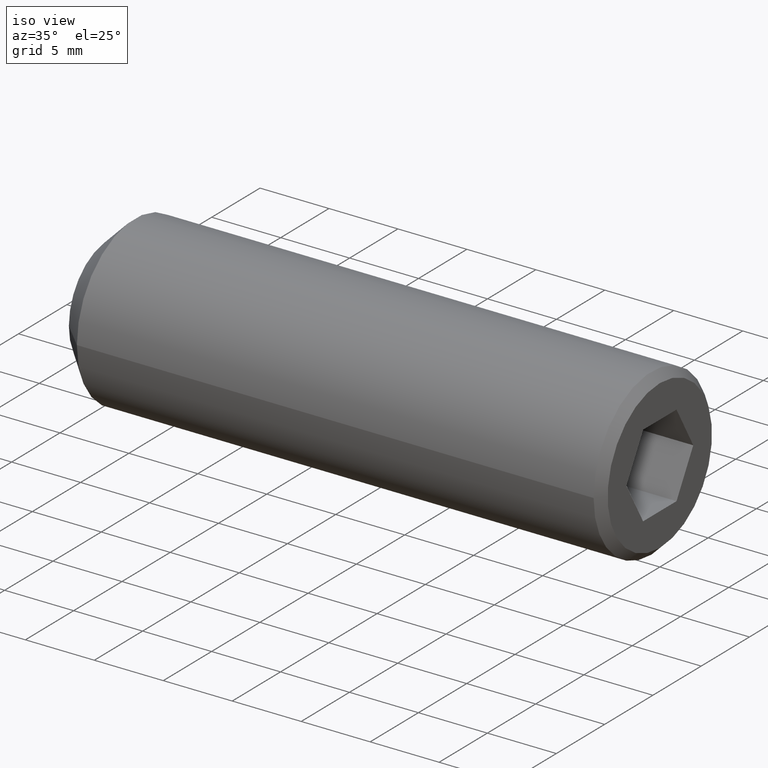
[diagram: clean part render]
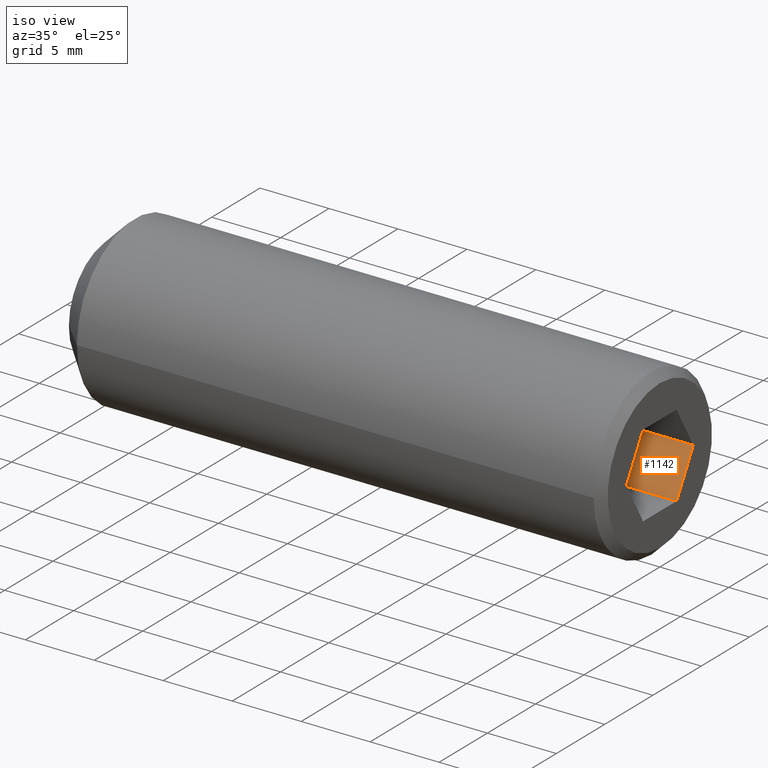
[diagram: same view with one face highlighted and labeled with its STEP entity id]
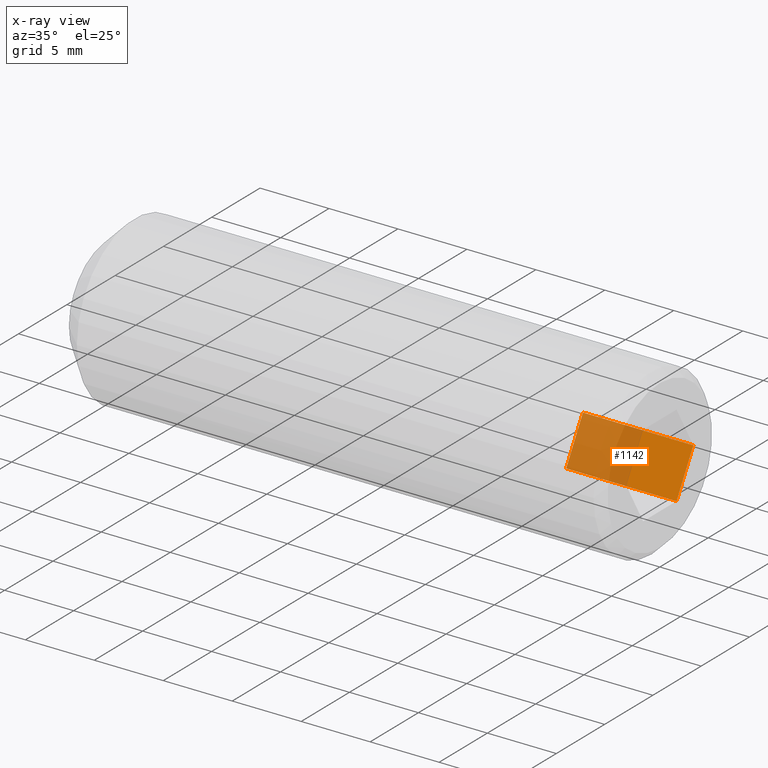
[diagram: x-ray of the same camera — body ghosted, the highlighted face saturated]
A machine part, iso view. The second image highlights one B-rep face of the part: STEP entity #1142.
The next image is the same camera in x-ray: the body ghosted, the highlighted face saturated — about 54% of this face is hidden behind the body in this view.
In plain terms, the highlighted planar face has unit normal (0, 0.866, -0.5).
Its self-contained STEP definition (entity closure, byte-faithful):
#186 = CARTESIAN_POINT ( 'NONE',  ( 32.00000000000000000, 3.464101615137748200, -4.738552910418652900E-016 ) ) ;
#294 = LINE ( 'NONE', #13440, #14233 ) ;
#440 = VERTEX_POINT ( 'NONE', #11723 ) ;
#929 = CARTESIAN_POINT ( 'NONE',  ( 40.00000000000000000, 3.464101615137748200, 1.598725048708560900E-017 ) ) ;
#1060 = VERTEX_POINT ( 'NONE', #4946 ) ;
#1142 = ADVANCED_FACE ( 'NONE', ( #2749 ), #6516, .F. ) ;
#1536 = DIRECTION ( 'NONE',  ( 1.000000000000000000, -0.0000000000000000000, 6.123031769111886300E-017 ) ) ;
#2001 = VECTOR ( 'NONE', #12206, 1000.000000000000200 ) ;
#2410 = VECTOR ( 'NONE', #1536, 1000.000000000000000 ) ;
#2703 = DIRECTION ( 'NONE',  ( 1.000000000000000000, -0.0000000000000000000, 6.123031769111886300E-017 ) ) ;
#2749 = FACE_OUTER_BOUND ( 'NONE', #6156, .T. ) ;
#2846 = LINE ( 'NONE', #6861, #2001 ) ;
#4946 = CARTESIAN_POINT ( 'NONE',  ( 32.00000000000000000, 2.598076211353318700, -1.499999999999998400 ) ) ;
#5235 = CARTESIAN_POINT ( 'NONE',  ( 32.00000000000000000, 1.732050807568871000, -3.000000000000000400 ) ) ;
#5291 = ORIENTED_EDGE ( 'NONE', *, *, #14147, .F. ) ;
#6156 = EDGE_LOOP ( 'NONE', ( #16222, #8261, #7005, #5291, #10355 ) ) ;
#6516 = PLANE ( 'NONE',  #8500 ) ;
#6861 = CARTESIAN_POINT ( 'NONE',  ( 32.00000000000000000, 1.732050807568871000, -3.000000000000000400 ) ) ;
#6914 = CARTESIAN_POINT ( 'NONE',  ( 40.00000000000000000, 1.732050807568871000, -3.000000000000000000 ) ) ;
#7005 = ORIENTED_EDGE ( 'NONE', *, *, #7938, .F. ) ;
#7938 = EDGE_CURVE ( 'NONE', #1060, #15743, #2846, .T. ) ;
#8131 = VERTEX_POINT ( 'NONE', #8852 ) ;
#8168 = DIRECTION ( 'NONE',  ( 0.0000000000000000000, 0.4999999999999998900, 0.8660254037844386000 ) ) ;
#8261 = ORIENTED_EDGE ( 'NONE', *, *, #16262, .F. ) ;
#8269 = VECTOR ( 'NONE', #8168, 1000.000000000000200 ) ;
#8419 = VECTOR ( 'NONE', #12791, 1000.000000000000200 ) ;
#8500 = AXIS2_PLACEMENT_3D ( 'NONE', #5235, #13392, #9430 ) ;
#8852 = CARTESIAN_POINT ( 'NONE',  ( 40.00000000000000000, 1.732050807568871000, -3.000000000000000000 ) ) ;
#9160 = LINE ( 'NONE', #186, #2410 ) ;
#9430 = DIRECTION ( 'NONE',  ( 0.0000000000000000000, 0.4999999999999999400, 0.8660254037844387100 ) ) ;
#10355 = ORIENTED_EDGE ( 'NONE', *, *, #11081, .T. ) ;
#11081 = EDGE_CURVE ( 'NONE', #440, #8131, #294, .T. ) ;
#11723 = CARTESIAN_POINT ( 'NONE',  ( 32.00000000000000000, 1.732050807568871000, -3.000000000000000400 ) ) ;
#12206 = DIRECTION ( 'NONE',  ( 0.0000000000000000000, 0.4999999999999998900, 0.8660254037844386000 ) ) ;
#12791 = DIRECTION ( 'NONE',  ( 0.0000000000000000000, 0.4999999999999998900, 0.8660254037844386000 ) ) ;
#12962 = EDGE_CURVE ( 'NONE', #8131, #17008, #14193, .T. ) ;
#13392 = DIRECTION ( 'NONE',  ( 3.061515884555943100E-017, 0.8660254037844387100, -0.4999999999999999400 ) ) ;
#13440 = CARTESIAN_POINT ( 'NONE',  ( 32.00000000000000000, 1.732050807568871000, -3.000000000000000400 ) ) ;
#14147 = EDGE_CURVE ( 'NONE', #440, #1060, #16446, .T. ) ;
#14193 = LINE ( 'NONE', #6914, #8269 ) ;
#14233 = VECTOR ( 'NONE', #2703, 1000.000000000000000 ) ;
#14243 = CARTESIAN_POINT ( 'NONE',  ( 32.00000000000000000, 3.464101615137748200, -4.738552910418652900E-016 ) ) ;
#15743 = VERTEX_POINT ( 'NONE', #14243 ) ;
#16222 = ORIENTED_EDGE ( 'NONE', *, *, #12962, .T. ) ;
#16262 = EDGE_CURVE ( 'NONE', #15743, #17008, #9160, .T. ) ;
#16446 = LINE ( 'NONE', #17027, #8419 ) ;
#17008 = VERTEX_POINT ( 'NONE', #929 ) ;
#17027 = CARTESIAN_POINT ( 'NONE',  ( 32.00000000000000000, 1.732050807568871000, -3.000000000000000400 ) ) ;